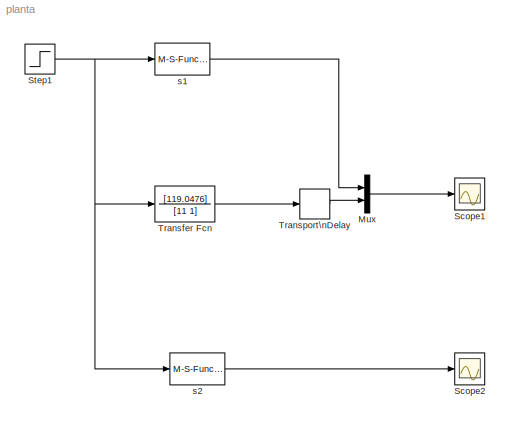
MODEL planta
KIND model
BLOCK [Mux] Mux
  DisplayOption = bar
  Inputs = 2
  Ports = [2, 1]
  SID = 16
BLOCK [Scope] Scope1
  Floating = off
  NumInputPorts = 1
  Ports = [1]
  SID = 11
  SaveName = Parte2
  SaveToWorkspace = on
  ShowLegends = off
BLOCK [Scope] Scope2
  Floating = off
  NumInputPorts = 1
  Ports = [1]
  SID = 17
  SaveName = Parte
  ShowLegends = off
BLOCK [Step] Step1
  SID = 12
  SampleTime = 0
BLOCK [TransferFcn] Transfer Fcn
  Denominator = [11 1]
  Numerator = [119.0476]
  SID = 8
BLOCK [TransportDelay] Transport\nDelay
  DelayTime = 6
  Ports = [1, 1]
  SID = 14
BLOCK [M-S-Function] s1
  FunctionName = whoknows
  Parameters = L, P1, P2, T, R
  Ports = [1, 1]
  SID = 7
BLOCK [M-S-Function] s2
  FunctionName = whoknows
  Parameters = L, P1, P2, T, R
  Ports = [1, 1]
  SID = 18
LINE Mux:1 -> Scope1:1
NET Step1:1 -> Transfer Fcn:1, s1:1, s2:1
LINE Transfer Fcn:1 -> Transport\nDelay:1
LINE Transport\nDelay:1 -> Mux:2
LINE s1:1 -> Mux:1
LINE s2:1 -> Scope2:1
note: NET lines group one-source signal fan-out (src -> all destinations, sorted); 1:1 wires keep LINE
